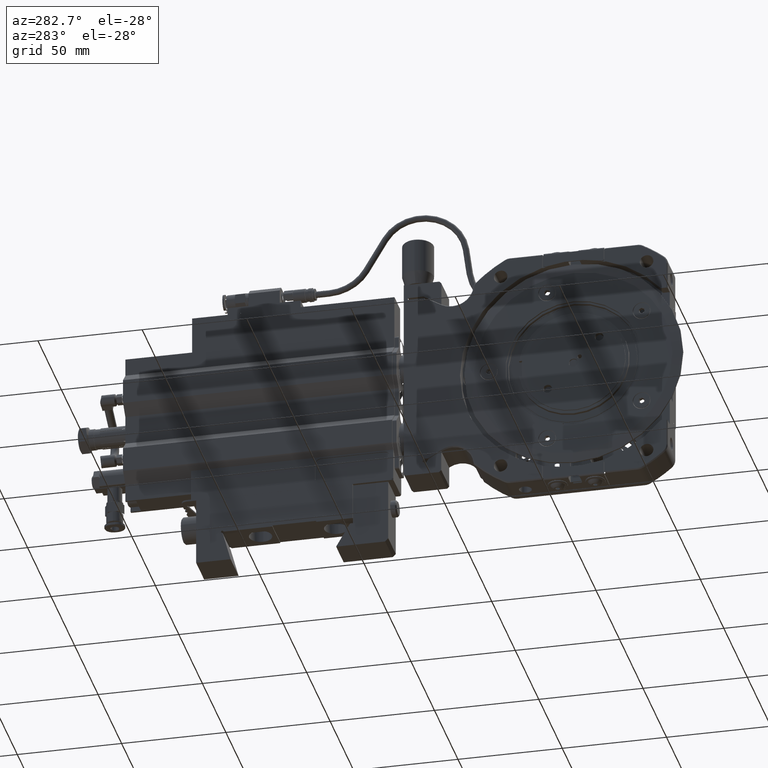
[diagram: clean part render]
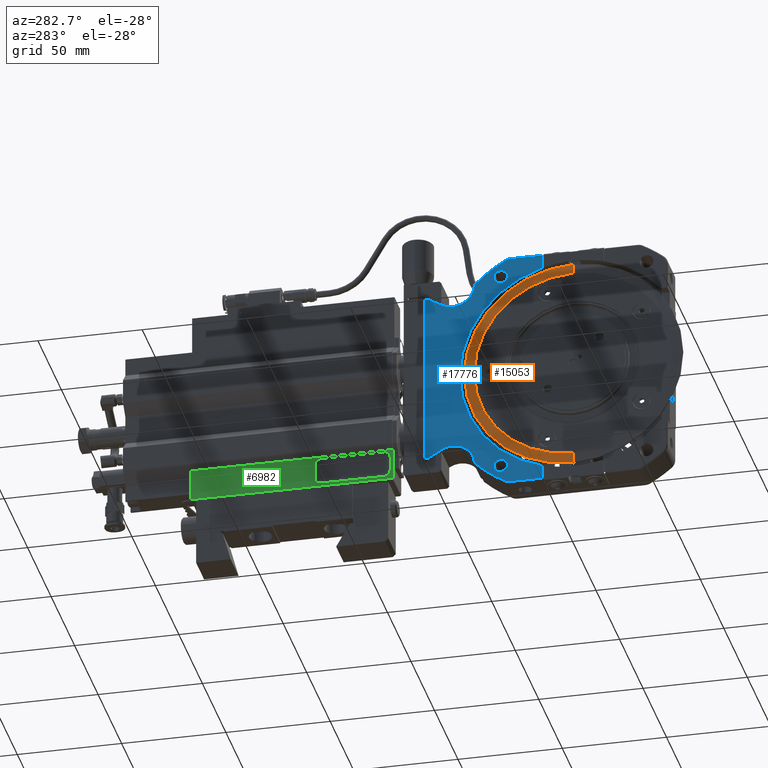
[diagram: same view with three faces highlighted in distinct colors, each labeled with its STEP entity id]
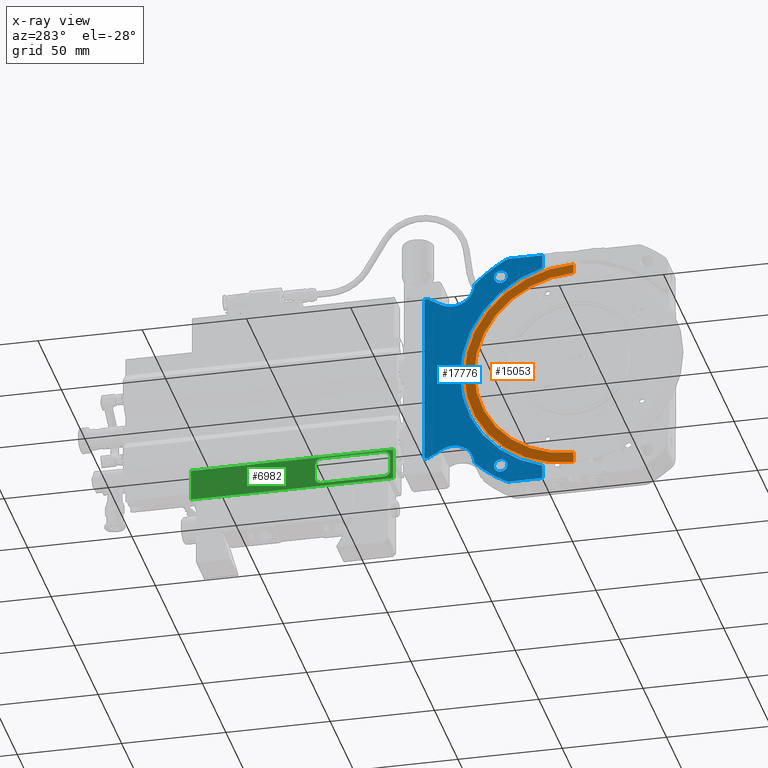
[diagram: x-ray of the same camera — body ghosted, the three highlighted faces saturated]
A machine part, auxiliary view with three faces highlighted in distinct colors.
The next image is the same camera in x-ray (body ghosted, the three faces saturated) — at least one of them is partly hidden behind the body in this view.
Their STEP definitions:

[orange] entity #15053 — the highlighted conical surface has half-angle 83 deg.
#98 = FACE_OUTER_BOUND ( 'NONE', #45208, .T. ) ;
#1043 = DIRECTION ( 'NONE',  ( 0.1218693434051477120, 0.000000000000000000, -0.9925461516413219831 ) ) ;
#2029 = AXIS2_PLACEMENT_3D ( 'NONE', #39850, #40135, #31887 ) ;
#2634 = CARTESIAN_POINT ( 'NONE',  ( -0.3622047244094396268, -0.09684252173074514580, -1.869120026493730435 ) ) ;
#2735 = VECTOR ( 'NONE', #1043, 39.37007874015748143 ) ;
#2823 = CARTESIAN_POINT ( 'NONE',  ( -0.3385815718487646953, -0.09684252173074514580, 0.001942965632253575723 ) ) ;
#3114 = EDGE_CURVE ( 'NONE', #13638, #44360, #16755, .T. ) ;
#4014 = AXIS2_PLACEMENT_3D ( 'NONE', #2823, #37916, #37353 ) ;
#6564 = EDGE_CURVE ( 'NONE', #28144, #13638, #13737, .T. ) ;
#7594 = CARTESIAN_POINT ( 'NONE',  ( -0.3385815718487646953, -0.09684252173074489600, 2.065401095933268927 ) ) ;
#7981 = EDGE_CURVE ( 'NONE', #24127, #44360, #39567, .T. ) ;
#13638 = VERTEX_POINT ( 'NONE', #7594 ) ;
#13737 = LINE ( 'NONE', #22213, #39708 ) ;
#15053 = ADVANCED_FACE ( 'NONE', ( #98 ), #17097, .T. ) ;
#16755 = CIRCLE ( 'NONE', #4014, 2.063458130301015103 ) ;
#17097 = CONICAL_SURFACE ( 'NONE', #26203, 2.063458130301015103, 1.448623279155293320 ) ;
#19466 = CARTESIAN_POINT ( 'NONE',  ( -0.3385815718487646953, -0.09684252173074514580, -2.061515164668761280 ) ) ;
#20842 = EDGE_CURVE ( 'NONE', #28144, #24127, #26637, .T. ) ;
#22213 = CARTESIAN_POINT ( 'NONE',  ( -0.3385815718487646953, -0.09684252173074489600, 2.065401095933268927 ) ) ;
#22935 = CARTESIAN_POINT ( 'NONE',  ( -0.3622047244094396268, -0.09684252173074490988, 1.873005957758237860 ) ) ;
#24127 = VERTEX_POINT ( 'NONE', #2634 ) ;
#25792 = CARTESIAN_POINT ( 'NONE',  ( -0.3385815718487646953, -0.09684252173074514580, 0.001942965632253575723 ) ) ;
#26203 = AXIS2_PLACEMENT_3D ( 'NONE', #25792, #53140, #27737 ) ;
#26637 = CIRCLE ( 'NONE', #2029, 1.871062992125984259 ) ;
#27737 = DIRECTION ( 'NONE',  ( 0.000000000000000000, 0.000000000000000000, -1.000000000000000000 ) ) ;
#28144 = VERTEX_POINT ( 'NONE', #22935 ) ;
#31887 = DIRECTION ( 'NONE',  ( 0.000000000000000000, 0.000000000000000000, 1.000000000000000000 ) ) ;
#33358 = ORIENTED_EDGE ( 'NONE', *, *, #20842, .F. ) ;
#35334 = CARTESIAN_POINT ( 'NONE',  ( -0.3385815718487646953, -0.09684252173074514580, -2.061515164668761280 ) ) ;
#37353 = DIRECTION ( 'NONE',  ( 0.000000000000000000, 0.000000000000000000, 1.000000000000000000 ) ) ;
#37916 = DIRECTION ( 'NONE',  ( -1.000000000000000000, -0.000000000000000000, -0.000000000000000000 ) ) ;
#39567 = LINE ( 'NONE', #35334, #2735 ) ;
#39708 = VECTOR ( 'NONE', #47579, 39.37007874015748143 ) ;
#39850 = CARTESIAN_POINT ( 'NONE',  ( -0.3622047244094396268, -0.09684252173074514580, 0.001942965632253575723 ) ) ;
#40135 = DIRECTION ( 'NONE',  ( -1.000000000000000000, -0.000000000000000000, -0.000000000000000000 ) ) ;
#41743 = ORIENTED_EDGE ( 'NONE', *, *, #3114, .T. ) ;
#44360 = VERTEX_POINT ( 'NONE', #19466 ) ;
#45208 = EDGE_LOOP ( 'NONE', ( #33358, #53603, #41743, #45561 ) ) ;
#45561 = ORIENTED_EDGE ( 'NONE', *, *, #7981, .F. ) ;
#47579 = DIRECTION ( 'NONE',  ( 0.1218693434051477120, 1.215518467613568319E-16, 0.9925461516413219831 ) ) ;
#53140 = DIRECTION ( 'NONE',  ( 1.000000000000000000, 0.000000000000000000, 0.000000000000000000 ) ) ;
#53603 = ORIENTED_EDGE ( 'NONE', *, *, #6564, .T. ) ;

[blue] entity #17776 — the highlighted planar face has unit normal (1, 0, 0).
#1228 = ORIENTED_EDGE ( 'NONE', *, *, #25585, .F. ) ;
#1335 = EDGE_CURVE ( 'NONE', #36690, #5536, #41366, .T. ) ;
#2163 = DIRECTION ( 'NONE',  ( 1.812397661468307792E-16, 6.531104430076867352E-15, -1.000000000000000000 ) ) ;
#2460 = DIRECTION ( 'NONE',  ( -1.000000000000000000, -2.800164661610394113E-17, -1.700029006457271446E-16 ) ) ;
#2545 = ORIENTED_EDGE ( 'NONE', *, *, #17784, .T. ) ;
#2549 = VERTEX_POINT ( 'NONE', #41479 ) ;
#2954 = CARTESIAN_POINT ( 'NONE',  ( -0.3346456692913296616, 2.718118108190510362, -1.655537349328384922 ) ) ;
#3341 = DIRECTION ( 'NONE',  ( 1.838806884535415767E-16, -3.239319189567619910E-15, -1.000000000000000000 ) ) ;
#3919 = DIRECTION ( 'NONE',  ( 1.838806884535416260E-16, -3.239319189567620699E-15, -1.000000000000000000 ) ) ;
#4099 = EDGE_CURVE ( 'NONE', #11371, #53875, #28839, .T. ) ;
#4100 = DIRECTION ( 'NONE',  ( -2.918251206342215541E-17, 1.000000000000000000, -3.224031013947942620E-15 ) ) ;
#4130 = ORIENTED_EDGE ( 'NONE', *, *, #40990, .T. ) ;
#4324 = DIRECTION ( 'NONE',  ( 2.918251206342215541E-17, -1.000000000000000000, 3.224031013947941831E-15 ) ) ;
#4453 = VERTEX_POINT ( 'NONE', #16511 ) ;
#4643 = CARTESIAN_POINT ( 'NONE',  ( -0.3346456692913296616, 2.189898843474779255, -1.864231443936779975 ) ) ;
#4723 = CARTESIAN_POINT ( 'NONE',  ( -0.3346456692913298281, 2.396591756860608768, -1.506228816388093250 ) ) ;
#5536 = VERTEX_POINT ( 'NONE', #30524 ) ;
#5697 = EDGE_CURVE ( 'NONE', #5536, #36690, #19537, .T. ) ;
#6382 = EDGE_CURVE ( 'NONE', #14029, #8829, #9236, .T. ) ;
#7074 = PLANE ( 'NONE',  #39413 ) ;
#7076 = CIRCLE ( 'NONE', #38033, 0.05905511811023490820 ) ;
#7205 = DIRECTION ( 'NONE',  ( 0.000000000000000000, 0.000000000000000000, -1.000000000000000000 ) ) ;
#7783 = VERTEX_POINT ( 'NONE', #29931 ) ;
#8121 = DIRECTION ( 'NONE',  ( 1.000000000000000000, 2.800164661610394113E-17, 1.700029006457271446E-16 ) ) ;
#8155 = CARTESIAN_POINT ( 'NONE',  ( -0.3346456692913303277, 1.194373758246772610, 2.302100445947210083 ) ) ;
#8369 = CARTESIAN_POINT ( 'NONE',  ( -0.3346456692913295505, 2.718118108190507254, -2.320891680037045823 ) ) ;
#8772 = VECTOR ( 'NONE', #35450, 39.37007874015748143 ) ;
#8829 = VERTEX_POINT ( 'NONE', #18509 ) ;
#9142 = ORIENTED_EDGE ( 'NONE', *, *, #6382, .T. ) ;
#9236 = LINE ( 'NONE', #51971, #8772 ) ;
#9336 = CARTESIAN_POINT ( 'NONE',  ( -0.3346456692913303277, 1.280716533387371125, 1.969265800277918199 ) ) ;
#9389 = VERTEX_POINT ( 'NONE', #41065 ) ;
#9880 = DIRECTION ( 'NONE',  ( -1.000000000000000000, -2.800164661610394113E-17, -1.700029006457271446E-16 ) ) ;
#9900 = CARTESIAN_POINT ( 'NONE',  ( -0.3346456692913296616, 1.760327968272493715, -1.871257954447850258 ) ) ;
#10717 = AXIS2_PLACEMENT_3D ( 'NONE', #4643, #8121, #17215 ) ;
#10820 = CARTESIAN_POINT ( 'NONE',  ( -0.3346456692913303277, 1.280716533387370903, 1.841313044372406171 ) ) ;
#11371 = VERTEX_POINT ( 'NONE', #9900 ) ;
#11556 = AXIS2_PLACEMENT_3D ( 'NONE', #55193, #2460, #2163 ) ;
#11654 = FACE_BOUND ( 'NONE', #35116, .T. ) ;
#11818 = CARTESIAN_POINT ( 'NONE',  ( -0.3346456692913296616, 1.280716533387358691, -1.965379869013420322 ) ) ;
#12906 = AXIS2_PLACEMENT_3D ( 'NONE', #22958, #28367, #18398 ) ;
#13736 = DIRECTION ( 'NONE',  ( -1.000000000000000000, -2.800164661610394113E-17, -1.700029006457271446E-16 ) ) ;
#14029 = VERTEX_POINT ( 'NONE', #55521 ) ;
#14209 = CARTESIAN_POINT ( 'NONE',  ( -0.3346456692913303277, 2.189898843474791246, 1.868117375201272523 ) ) ;
#14239 = CARTESIAN_POINT ( 'NONE',  ( -0.3346456692913303277, 1.777643189342505092, 1.837570404620774367 ) ) ;
#14253 = DIRECTION ( 'NONE',  ( 1.812397661468306806E-16, -9.456832083589988340E-15, -1.000000000000000000 ) ) ;
#14633 = CARTESIAN_POINT ( 'NONE',  ( -0.3346456692913303277, 1.107650276755745899, 2.324777611301540148 ) ) ;
#14714 = DIRECTION ( 'NONE',  ( -2.918251206342215541E-17, 1.000000000000000000, -3.224031013947942620E-15 ) ) ;
#14740 = DIRECTION ( 'NONE',  ( 0.000000000000000000, 4.270088556250598741E-15, 1.000000000000000000 ) ) ;
#15252 = CIRCLE ( 'NONE', #10717, 0.4133858267716560841 ) ;
#15534 = CARTESIAN_POINT ( 'NONE',  ( -0.3346456692913296616, 2.189898843474779255, -1.864231443936779975 ) ) ;
#15896 = DIRECTION ( 'NONE',  ( -1.000000000000000000, -2.800164661610394113E-17, -1.700029006457271446E-16 ) ) ;
#15944 = AXIS2_PLACEMENT_3D ( 'NONE', #9336, #9880, #27251 ) ;
#16376 = AXIS2_PLACEMENT_3D ( 'NONE', #14209, #31060, #40127 ) ;
#16511 = CARTESIAN_POINT ( 'NONE',  ( -0.3346456692913296616, 1.280716533387358247, -2.093332624918932350 ) ) ;
#17127 = VERTEX_POINT ( 'NONE', #8155 ) ;
#17133 = DIRECTION ( 'NONE',  ( 0.000000000000000000, 0.000000000000000000, -1.000000000000000000 ) ) ;
#17215 = DIRECTION ( 'NONE',  ( 1.652117596168377649E-16, -3.304235192336755396E-15, -1.000000000000000000 ) ) ;
#17490 = ORIENTED_EDGE ( 'NONE', *, *, #38869, .T. ) ;
#17493 = LINE ( 'NONE', #51704, #26415 ) ;
#17647 = AXIS2_PLACEMENT_3D ( 'NONE', #20662, #37531, #14253 ) ;
#17776 = ADVANCED_FACE ( 'NONE', ( #44417, #22784, #11654 ), #7074, .F. ) ;
#17784 = EDGE_CURVE ( 'NONE', #7783, #21046, #46642, .T. ) ;
#17890 = CARTESIAN_POINT ( 'NONE',  ( -0.3346456692913296616, 2.655201721916761848, -1.655537349328384700 ) ) ;
#18129 = CIRCLE ( 'NONE', #16376, 0.4133858267716550294 ) ;
#18398 = DIRECTION ( 'NONE',  ( 0.000000000000000000, -3.083952846181016116E-15, -1.000000000000000000 ) ) ;
#18509 = CARTESIAN_POINT ( 'NONE',  ( -0.3346456692913303277, 2.655201721916771174, 1.659423280592874583 ) ) ;
#18812 = EDGE_CURVE ( 'NONE', #4453, #23097, #51360, .T. ) ;
#18883 = ORIENTED_EDGE ( 'NONE', *, *, #1335, .F. ) ;
#19537 = CIRCLE ( 'NONE', #15944, 0.1279527559055119168 ) ;
#20251 = VECTOR ( 'NONE', #37865, 39.37007874015748143 ) ;
#20662 = CARTESIAN_POINT ( 'NONE',  ( -0.3346456692913299391, -0.09684252173074514580, 0.001942965632253580493 ) ) ;
#21046 = VERTEX_POINT ( 'NONE', #14633 ) ;
#21571 = CIRCLE ( 'NONE', #28866, 0.05905511811023381880 ) ;
#22784 = FACE_BOUND ( 'NONE', #29017, .T. ) ;
#22958 = CARTESIAN_POINT ( 'NONE',  ( -0.3346456692913303277, 1.107650276755745455, 2.147612256970832689 ) ) ;
#23097 = VERTEX_POINT ( 'NONE', #46116 ) ;
#23222 = DIRECTION ( 'NONE',  ( 1.000000000000000000, 2.800164661610394113E-17, 1.700029006457271446E-16 ) ) ;
#23409 = VECTOR ( 'NONE', #45173, 39.37007874015748143 ) ;
#23507 = ORIENTED_EDGE ( 'NONE', *, *, #5697, .F. ) ;
#23535 = CARTESIAN_POINT ( 'NONE',  ( -0.3346456692913299391, -0.09684252173074514580, 0.001942965632253580493 ) ) ;
#24238 = ORIENTED_EDGE ( 'NONE', *, *, #35858, .T. ) ;
#24286 = CARTESIAN_POINT ( 'NONE',  ( -0.3346456692913296616, 1.718749524466453016, -1.829320620416208021 ) ) ;
#24363 = CARTESIAN_POINT ( 'NONE',  ( -0.3346456692913297171, 2.189898843474780588, -1.450845617165123835 ) ) ;
#24730 = CARTESIAN_POINT ( 'NONE',  ( -0.3346456692913303277, 1.280716533387371125, 1.969265800277918199 ) ) ;
#25389 = ORIENTED_EDGE ( 'NONE', *, *, #29177, .T. ) ;
#25564 = CARTESIAN_POINT ( 'NONE',  ( -0.3346456692913298281, 2.396591756860608768, -1.506228816388093472 ) ) ;
#25585 = EDGE_CURVE ( 'NONE', #38693, #29276, #32401, .T. ) ;
#26146 = CARTESIAN_POINT ( 'NONE',  ( -0.3346456692913303277, 1.760327968272507704, 1.875143885712345693 ) ) ;
#26415 = VECTOR ( 'NONE', #4100, 39.37007874015748143 ) ;
#26421 = ORIENTED_EDGE ( 'NONE', *, *, #51944, .T. ) ;
#26519 = CARTESIAN_POINT ( 'NONE',  ( -0.3346456692913303277, 1.718749524466465894, 1.833206551680703011 ) ) ;
#26719 = CARTESIAN_POINT ( 'NONE',  ( -0.3346456692913303277, 0.4937086593716247807, 2.344462650671621962 ) ) ;
#26775 = AXIS2_PLACEMENT_3D ( 'NONE', #44647, #27558, #14740 ) ;
#27251 = DIRECTION ( 'NONE',  ( 0.000000000000000000, 4.270088556250598741E-15, 1.000000000000000000 ) ) ;
#27302 = AXIS2_PLACEMENT_3D ( 'NONE', #15534, #23222, #32935 ) ;
#27558 = DIRECTION ( 'NONE',  ( -1.000000000000000000, -2.800164661610394113E-17, -1.700029006457271446E-16 ) ) ;
#28016 = ORIENTED_EDGE ( 'NONE', *, *, #32978, .T. ) ;
#28367 = DIRECTION ( 'NONE',  ( -1.000000000000000000, -2.800164661610394113E-17, -1.700029006457271446E-16 ) ) ;
#28661 = DIRECTION ( 'NONE',  ( 1.000000000000000000, 2.800164661610394113E-17, 1.700029006457271446E-16 ) ) ;
#28839 = CIRCLE ( 'NONE', #11556, 2.637795275590548272 ) ;
#28866 = AXIS2_PLACEMENT_3D ( 'NONE', #24286, #51081, #7205 ) ;
#29017 = EDGE_LOOP ( 'NONE', ( #30931, #38564 ) ) ;
#29092 = EDGE_CURVE ( 'NONE', #8829, #46259, #48894, .T. ) ;
#29177 = EDGE_CURVE ( 'NONE', #38693, #34788, #50824, .T. ) ;
#29251 = CARTESIAN_POINT ( 'NONE',  ( -0.3346456692913299391, 0.4937086593716096261, -2.320891680037037386 ) ) ;
#29276 = VERTEX_POINT ( 'NONE', #29251 ) ;
#29592 = AXIS2_PLACEMENT_3D ( 'NONE', #24730, #15896, #50954 ) ;
#29613 = DIRECTION ( 'NONE',  ( 1.000000000000000000, 2.800164661610399044E-17, 1.838806884535414781E-16 ) ) ;
#29807 = EDGE_CURVE ( 'NONE', #46259, #38063, #36113, .T. ) ;
#29931 = CARTESIAN_POINT ( 'NONE',  ( -0.3346456692913303277, 0.4937086593716246141, 2.324777611301543256 ) ) ;
#30055 = DIRECTION ( 'NONE',  ( -1.000000000000000000, -2.800164661610394113E-17, -1.700029006457271446E-16 ) ) ;
#30299 = CARTESIAN_POINT ( 'NONE',  ( -0.3346456692913303277, 2.718118108190520132, 1.659423280592874361 ) ) ;
#30524 = CARTESIAN_POINT ( 'NONE',  ( -0.3346456692913303277, 1.280716533387371792, 2.097218556183430227 ) ) ;
#30744 = LINE ( 'NONE', #26719, #54730 ) ;
#30789 = EDGE_CURVE ( 'NONE', #7783, #34788, #30744, .T. ) ;
#30931 = ORIENTED_EDGE ( 'NONE', *, *, #31054, .F. ) ;
#31054 = EDGE_CURVE ( 'NONE', #23097, #4453, #46553, .T. ) ;
#31060 = DIRECTION ( 'NONE',  ( 1.000000000000000000, 2.800164661610394113E-17, 1.700029006457271446E-16 ) ) ;
#32401 = LINE ( 'NONE', #32686, #23409 ) ;
#32686 = CARTESIAN_POINT ( 'NONE',  ( -0.3346456692913303277, 0.4937086593716247807, 2.344462650671621962 ) ) ;
#32935 = DIRECTION ( 'NONE',  ( 1.652117596168377649E-16, -3.304235192336755396E-15, -1.000000000000000000 ) ) ;
#32978 = EDGE_CURVE ( 'NONE', #17127, #35314, #42242, .T. ) ;
#33572 = AXIS2_PLACEMENT_3D ( 'NONE', #23535, #28661, #41458 ) ;
#34310 = ORIENTED_EDGE ( 'NONE', *, *, #54345, .T. ) ;
#34788 = VERTEX_POINT ( 'NONE', #49591 ) ;
#35116 = EDGE_LOOP ( 'NONE', ( #23507, #18883 ) ) ;
#35314 = VERTEX_POINT ( 'NONE', #26146 ) ;
#35450 = DIRECTION ( 'NONE',  ( -1.172131410199404631E-16, 0.8660254037844393737, 0.4999999999999986677 ) ) ;
#35858 = EDGE_CURVE ( 'NONE', #35314, #48342, #7076, .T. ) ;
#35951 = VECTOR ( 'NONE', #4324, 39.37007874015748143 ) ;
#36113 = LINE ( 'NONE', #56146, #41835 ) ;
#36690 = VERTEX_POINT ( 'NONE', #10820 ) ;
#37474 = VECTOR ( 'NONE', #55507, 39.37007874015748854 ) ;
#37531 = DIRECTION ( 'NONE',  ( -1.000000000000000000, -2.800164661610394113E-17, -1.700029006457271446E-16 ) ) ;
#37702 = VERTEX_POINT ( 'NONE', #17890 ) ;
#37865 = DIRECTION ( 'NONE',  ( -2.918251206342215541E-17, 1.000000000000000000, -3.224031013947941831E-15 ) ) ;
#38033 = AXIS2_PLACEMENT_3D ( 'NONE', #26519, #13736, #17133 ) ;
#38040 = EDGE_CURVE ( 'NONE', #52388, #9389, #48212, .T. ) ;
#38063 = VERTEX_POINT ( 'NONE', #2954 ) ;
#38136 = LINE ( 'NONE', #25564, #37474 ) ;
#38180 = EDGE_CURVE ( 'NONE', #37702, #38063, #17493, .T. ) ;
#38564 = ORIENTED_EDGE ( 'NONE', *, *, #18812, .F. ) ;
#38693 = VERTEX_POINT ( 'NONE', #43217 ) ;
#38869 = EDGE_CURVE ( 'NONE', #21046, #17127, #43774, .T. ) ;
#39034 = ORIENTED_EDGE ( 'NONE', *, *, #38180, .F. ) ;
#39251 = EDGE_LOOP ( 'NONE', ( #46484, #1228, #25389, #42880, #2545, #17490, #28016, #24238, #34310, #9142, #49131, #50508, #39034, #26421, #46402, #46249, #54105, #41669, #4130 ) ) ;
#39413 = AXIS2_PLACEMENT_3D ( 'NONE', #46367, #29613, #3341 ) ;
#40127 = DIRECTION ( 'NONE',  ( 1.652117596168381839E-16, -3.304235192336763679E-15, -1.000000000000000000 ) ) ;
#40990 = EDGE_CURVE ( 'NONE', #53875, #2549, #41427, .T. ) ;
#41065 = CARTESIAN_POINT ( 'NONE',  ( -0.3346456692913296616, 1.777643189342491103, -1.833684473356279376 ) ) ;
#41366 = CIRCLE ( 'NONE', #29592, 0.1279527559055119168 ) ;
#41427 = CIRCLE ( 'NONE', #42330, 0.1771653543307063761 ) ;
#41458 = DIRECTION ( 'NONE',  ( 1.909787313001989722E-16, -3.238680984965874096E-15, -1.000000000000000000 ) ) ;
#41479 = CARTESIAN_POINT ( 'NONE',  ( -0.3346456692913295505, 1.107650276755732799, -2.320891680037038274 ) ) ;
#41669 = ORIENTED_EDGE ( 'NONE', *, *, #4099, .T. ) ;
#41697 = VECTOR ( 'NONE', #14714, 39.37007874015748143 ) ;
#41835 = VECTOR ( 'NONE', #44630, 39.37007874015748143 ) ;
#42207 = DIRECTION ( 'NONE',  ( -1.000000000000000000, -2.800164661610394113E-17, -1.700029006457271446E-16 ) ) ;
#42242 = CIRCLE ( 'NONE', #17647, 2.637795275590549604 ) ;
#42330 = AXIS2_PLACEMENT_3D ( 'NONE', #54758, #42207, #51325 ) ;
#42880 = ORIENTED_EDGE ( 'NONE', *, *, #30789, .F. ) ;
#42887 = EDGE_CURVE ( 'NONE', #55542, #52388, #15252, .T. ) ;
#43217 = CARTESIAN_POINT ( 'NONE',  ( -0.3346456692913295505, 0.4937086593716105143, -2.060857560422562518 ) ) ;
#43774 = CIRCLE ( 'NONE', #12906, 0.1771653543307071810 ) ;
#44417 = FACE_OUTER_BOUND ( 'NONE', #39251, .T. ) ;
#44630 = DIRECTION ( 'NONE',  ( 1.838806884535416260E-16, -3.239319189567620699E-15, -1.000000000000000000 ) ) ;
#44647 = CARTESIAN_POINT ( 'NONE',  ( -0.3346456692913296616, 1.280716533387358691, -1.965379869013420322 ) ) ;
#44740 = AXIS2_PLACEMENT_3D ( 'NONE', #11818, #30055, #46523 ) ;
#45173 = DIRECTION ( 'NONE',  ( 1.838806884535416260E-16, -3.239319189567620699E-15, -1.000000000000000000 ) ) ;
#45870 = CARTESIAN_POINT ( 'NONE',  ( -0.3346456692913295505, 1.194373758246758843, -2.298214514682708209 ) ) ;
#46116 = CARTESIAN_POINT ( 'NONE',  ( -0.3346456692913296616, 1.280716533387359135, -1.837427113107908294 ) ) ;
#46242 = EDGE_CURVE ( 'NONE', #2549, #29276, #51652, .T. ) ;
#46249 = ORIENTED_EDGE ( 'NONE', *, *, #38040, .T. ) ;
#46259 = VERTEX_POINT ( 'NONE', #30299 ) ;
#46367 = CARTESIAN_POINT ( 'NONE',  ( -0.3346456692913304942, 2.718118108190522353, 2.344462650671614856 ) ) ;
#46402 = ORIENTED_EDGE ( 'NONE', *, *, #42887, .T. ) ;
#46484 = ORIENTED_EDGE ( 'NONE', *, *, #46242, .T. ) ;
#46523 = DIRECTION ( 'NONE',  ( 0.000000000000000000, 4.270088556250598741E-15, 1.000000000000000000 ) ) ;
#46553 = CIRCLE ( 'NONE', #44740, 0.1279527559055119168 ) ;
#46642 = LINE ( 'NONE', #54670, #20251 ) ;
#48212 = CIRCLE ( 'NONE', #27302, 0.4133858267716560841 ) ;
#48342 = VERTEX_POINT ( 'NONE', #14239 ) ;
#48894 = LINE ( 'NONE', #49734, #41697 ) ;
#49131 = ORIENTED_EDGE ( 'NONE', *, *, #29092, .T. ) ;
#49591 = CARTESIAN_POINT ( 'NONE',  ( -0.3346456692913303277, 0.4937086593716238925, 2.064743491687066168 ) ) ;
#49734 = CARTESIAN_POINT ( 'NONE',  ( -0.3346456692913303277, 2.718118108190521465, 1.659423280592874361 ) ) ;
#50508 = ORIENTED_EDGE ( 'NONE', *, *, #29807, .T. ) ;
#50824 = CIRCLE ( 'NONE', #33572, 2.145669291338582418 ) ;
#50954 = DIRECTION ( 'NONE',  ( 0.000000000000000000, 4.270088556250598741E-15, 1.000000000000000000 ) ) ;
#51081 = DIRECTION ( 'NONE',  ( -1.000000000000000000, -2.800164661610394113E-17, -1.700029006457271446E-16 ) ) ;
#51325 = DIRECTION ( 'NONE',  ( 0.000000000000000000, -7.709882115452575788E-16, -1.000000000000000000 ) ) ;
#51360 = CIRCLE ( 'NONE', #26775, 0.1279527559055119168 ) ;
#51652 = LINE ( 'NONE', #8369, #35951 ) ;
#51704 = CARTESIAN_POINT ( 'NONE',  ( -0.3346456692913296616, 2.718118108190510362, -1.655537349328384922 ) ) ;
#51944 = EDGE_CURVE ( 'NONE', #37702, #55542, #38136, .T. ) ;
#51971 = CARTESIAN_POINT ( 'NONE',  ( -0.3346456692913303277, 2.999019760162423331, 1.857926717526250160 ) ) ;
#52388 = VERTEX_POINT ( 'NONE', #24363 ) ;
#52722 = EDGE_CURVE ( 'NONE', #9389, #11371, #21571, .T. ) ;
#53875 = VERTEX_POINT ( 'NONE', #45870 ) ;
#54105 = ORIENTED_EDGE ( 'NONE', *, *, #52722, .T. ) ;
#54345 = EDGE_CURVE ( 'NONE', #48342, #14029, #18129, .T. ) ;
#54670 = CARTESIAN_POINT ( 'NONE',  ( -0.3346456692913304942, 2.718118108190522353, 2.324777611301536151 ) ) ;
#54730 = VECTOR ( 'NONE', #3919, 39.37007874015748143 ) ;
#54758 = CARTESIAN_POINT ( 'NONE',  ( -0.3346456692913295505, 1.107650276755733465, -2.143726325706332148 ) ) ;
#55193 = CARTESIAN_POINT ( 'NONE',  ( -0.3346456692913299391, -0.09684252173074514580, 0.001942965632253580493 ) ) ;
#55507 = DIRECTION ( 'NONE',  ( -6.666754743360166826E-17, -0.8660254037844361541, 0.5000000000000042188 ) ) ;
#55521 = CARTESIAN_POINT ( 'NONE',  ( -0.3346456692913303277, 2.396591756860618094, 1.510114747652585576 ) ) ;
#55542 = VERTEX_POINT ( 'NONE', #4723 ) ;
#56146 = CARTESIAN_POINT ( 'NONE',  ( -0.3346456692913295505, 2.718118108190507254, -2.340576719407124529 ) ) ;

[green] entity #6982 — the highlighted planar face has unit normal (1, -0, 0).
#538 = LINE ( 'NONE', #44138, #33334 ) ;
#1084 = CARTESIAN_POINT ( 'NONE',  ( -0.3346456692913382103, 3.308669289292881288, -1.994120026493726883 ) ) ;
#1467 = CARTESIAN_POINT ( 'NONE',  ( -0.3346456692913382103, 3.367724407403117848, -1.816954672163017204 ) ) ;
#2267 = ORIENTED_EDGE ( 'NONE', *, *, #53902, .F. ) ;
#2618 = CIRCLE ( 'NONE', #3534, 0.1181102362204725503 ) ;
#3105 = DIRECTION ( 'NONE',  ( -1.802115992239523963E-16, -5.551115123125782702E-17, 1.000000000000000000 ) ) ;
#3534 = AXIS2_PLACEMENT_3D ( 'NONE', #51608, #12303, #29705 ) ;
#3676 = VECTOR ( 'NONE', #24025, 39.37007874015748143 ) ;
#3931 = CARTESIAN_POINT ( 'NONE',  ( -0.3346456692913388209, 3.308669289292881288, -1.395694829643333135 ) ) ;
#5421 = EDGE_CURVE ( 'NONE', #27777, #9615, #21664, .T. ) ;
#5788 = FACE_OUTER_BOUND ( 'NONE', #9945, .T. ) ;
#6521 = EDGE_LOOP ( 'NONE', ( #9910, #55395, #33805, #39112, #28213, #32658, #2267, #10415 ) ) ;
#6982 = ADVANCED_FACE ( 'NONE', ( #10381, #5788 ), #24334, .F. ) ;
#7703 = CARTESIAN_POINT ( 'NONE',  ( -0.3346456692913382103, 3.367724407403117848, -1.816954672163017204 ) ) ;
#7929 = EDGE_CURVE ( 'NONE', #11201, #10834, #23008, .T. ) ;
#8183 = EDGE_CURVE ( 'NONE', #10834, #13198, #44651, .T. ) ;
#8348 = CARTESIAN_POINT ( 'NONE',  ( -0.3346456692913382658, 3.485834643623591411, -1.423253884761443322 ) ) ;
#8873 = DIRECTION ( 'NONE',  ( -2.738967610578714190E-17, 1.000000000000000000, -2.775557561562891351E-17 ) ) ;
#9026 = CARTESIAN_POINT ( 'NONE',  ( -0.3346456692913382658, 4.666937005828314611, -1.816954672163018092 ) ) ;
#9615 = VERTEX_POINT ( 'NONE', #1084 ) ;
#9910 = ORIENTED_EDGE ( 'NONE', *, *, #16258, .F. ) ;
#9945 = EDGE_LOOP ( 'NONE', ( #39284, #36756, #45627, #11270 ) ) ;
#10282 = EDGE_CURVE ( 'NONE', #24143, #22127, #2618, .T. ) ;
#10350 = VECTOR ( 'NONE', #55918, 39.37007874015748143 ) ;
#10381 = FACE_BOUND ( 'NONE', #6521, .T. ) ;
#10415 = ORIENTED_EDGE ( 'NONE', *, *, #47519, .F. ) ;
#10834 = VERTEX_POINT ( 'NONE', #22663 ) ;
#11201 = VERTEX_POINT ( 'NONE', #12809 ) ;
#11229 = CARTESIAN_POINT ( 'NONE',  ( -0.3346456692913382658, 3.308669289292881288, -1.395694829643333135 ) ) ;
#11270 = ORIENTED_EDGE ( 'NONE', *, *, #44315, .T. ) ;
#11332 = VERTEX_POINT ( 'NONE', #31569 ) ;
#11996 = LINE ( 'NONE', #7703, #20987 ) ;
#12303 = DIRECTION ( 'NONE',  ( -1.000000000000000000, 5.477935221156371429E-17, -1.201972231527911928E-17 ) ) ;
#12423 = AXIS2_PLACEMENT_3D ( 'NONE', #19031, #53824, #36196 ) ;
#12623 = LINE ( 'NONE', #8348, #30933 ) ;
#12687 = CARTESIAN_POINT ( 'NONE',  ( -0.3346456692913382658, 3.367724407403117848, -1.541364120981916885 ) ) ;
#12809 = CARTESIAN_POINT ( 'NONE',  ( -0.3346456692913383213, 4.785047242048786842, -1.541364120981916885 ) ) ;
#13092 = EDGE_CURVE ( 'NONE', #37016, #21342, #31573, .T. ) ;
#13182 = VECTOR ( 'NONE', #42772, 39.37007874015748143 ) ;
#13198 = VERTEX_POINT ( 'NONE', #15415 ) ;
#14482 = DIRECTION ( 'NONE',  ( 1.802115992239523963E-16, 5.551115123125782702E-17, -1.000000000000000000 ) ) ;
#15415 = CARTESIAN_POINT ( 'NONE',  ( -0.3346456692913382103, 4.666937005828313723, -1.935064908383490545 ) ) ;
#16258 = EDGE_CURVE ( 'NONE', #22127, #19501, #11996, .T. ) ;
#16992 = DIRECTION ( 'NONE',  ( -1.000000000000000000, 5.477935221156371429E-17, -1.201972231527911928E-17 ) ) ;
#17016 = CARTESIAN_POINT ( 'NONE',  ( -0.3346456692913382658, 3.485834643623591411, -1.423253884761443322 ) ) ;
#19031 = CARTESIAN_POINT ( 'NONE',  ( -0.3346456692913382658, 3.485834643623590079, -1.541364120981915997 ) ) ;
#19501 = VERTEX_POINT ( 'NONE', #12687 ) ;
#20987 = VECTOR ( 'NONE', #3105, 39.37007874015748143 ) ;
#21131 = LINE ( 'NONE', #38556, #10350 ) ;
#21194 = EDGE_CURVE ( 'NONE', #13198, #24143, #21131, .T. ) ;
#21342 = VERTEX_POINT ( 'NONE', #25673 ) ;
#21546 = CARTESIAN_POINT ( 'NONE',  ( -0.3346456692913384323, 7.127566927088157200, -1.395694829643333135 ) ) ;
#21664 = LINE ( 'NONE', #25387, #13182 ) ;
#22127 = VERTEX_POINT ( 'NONE', #1467 ) ;
#22663 = CARTESIAN_POINT ( 'NONE',  ( -0.3346456692913382658, 4.785047242048786842, -1.816954672163017204 ) ) ;
#23008 = LINE ( 'NONE', #52972, #28212 ) ;
#24025 = DIRECTION ( 'NONE',  ( -2.738967610578714190E-17, 1.000000000000000000, -2.775557561562891351E-17 ) ) ;
#24143 = VERTEX_POINT ( 'NONE', #38303 ) ;
#24334 = PLANE ( 'NONE',  #46125 ) ;
#25387 = CARTESIAN_POINT ( 'NONE',  ( -0.3346456692913382103, 3.308669289292881288, -1.994120026493726883 ) ) ;
#25673 = CARTESIAN_POINT ( 'NONE',  ( -0.3346456692913382658, 7.127566927088157200, -1.994120026493726883 ) ) ;
#25735 = DIRECTION ( 'NONE',  ( -1.000000000000000000, 5.477935221156371429E-17, -1.201972231527911928E-17 ) ) ;
#26537 = DIRECTION ( 'NONE',  ( -2.738967610578713573E-17, 1.000000000000000000, -2.775557561562891351E-17 ) ) ;
#26712 = DIRECTION ( 'NONE',  ( 1.802115992239523963E-16, 5.551115123125782702E-17, -1.000000000000000000 ) ) ;
#26987 = CARTESIAN_POINT ( 'NONE',  ( -0.3346456692913382658, 7.127566927088157200, -1.994120026493726883 ) ) ;
#27777 = VERTEX_POINT ( 'NONE', #3931 ) ;
#28212 = VECTOR ( 'NONE', #14482, 39.37007874015748143 ) ;
#28213 = ORIENTED_EDGE ( 'NONE', *, *, #7929, .F. ) ;
#29705 = DIRECTION ( 'NONE',  ( 0.000000000000000000, 0.000000000000000000, -1.000000000000000000 ) ) ;
#30933 = VECTOR ( 'NONE', #26537, 39.37007874015748143 ) ;
#31569 = CARTESIAN_POINT ( 'NONE',  ( -0.3346456692913383213, 4.666937005828313723, -1.423253884761443322 ) ) ;
#31573 = LINE ( 'NONE', #26987, #48960 ) ;
#32658 = ORIENTED_EDGE ( 'NONE', *, *, #49845, .F. ) ;
#33334 = VECTOR ( 'NONE', #8873, 39.37007874015748143 ) ;
#33805 = ORIENTED_EDGE ( 'NONE', *, *, #21194, .F. ) ;
#36196 = DIRECTION ( 'NONE',  ( 0.000000000000000000, 0.000000000000000000, 1.000000000000000000 ) ) ;
#36756 = ORIENTED_EDGE ( 'NONE', *, *, #42256, .F. ) ;
#36897 = DIRECTION ( 'NONE',  ( 1.000000000000000000, -5.477935221156372661E-17, 1.802115992239523963E-16 ) ) ;
#36985 = CIRCLE ( 'NONE', #12423, 0.1181102362204725503 ) ;
#37016 = VERTEX_POINT ( 'NONE', #21546 ) ;
#38303 = CARTESIAN_POINT ( 'NONE',  ( -0.3346456692913382103, 3.485834643623591411, -1.935064908383490545 ) ) ;
#38556 = CARTESIAN_POINT ( 'NONE',  ( -0.3346456692913382103, 3.485834643623591411, -1.935064908383490545 ) ) ;
#39112 = ORIENTED_EDGE ( 'NONE', *, *, #8183, .F. ) ;
#39284 = ORIENTED_EDGE ( 'NONE', *, *, #13092, .T. ) ;
#40996 = AXIS2_PLACEMENT_3D ( 'NONE', #9026, #16992, #43179 ) ;
#42256 = EDGE_CURVE ( 'NONE', #9615, #21342, #538, .T. ) ;
#42772 = DIRECTION ( 'NONE',  ( 1.802115992239523963E-16, 5.551115123125782702E-17, -1.000000000000000000 ) ) ;
#43179 = DIRECTION ( 'NONE',  ( 0.000000000000000000, 0.000000000000000000, -1.000000000000000000 ) ) ;
#44138 = CARTESIAN_POINT ( 'NONE',  ( -0.3346456692913382103, 3.308669289292881288, -1.994120026493726883 ) ) ;
#44315 = EDGE_CURVE ( 'NONE', #27777, #37016, #45381, .T. ) ;
#44651 = CIRCLE ( 'NONE', #40996, 0.1181102362204725503 ) ;
#45111 = DIRECTION ( 'NONE',  ( 1.802115992239523963E-16, 5.551115123125782702E-17, -1.000000000000000000 ) ) ;
#45381 = LINE ( 'NONE', #11229, #3676 ) ;
#45627 = ORIENTED_EDGE ( 'NONE', *, *, #5421, .F. ) ;
#46125 = AXIS2_PLACEMENT_3D ( 'NONE', #54549, #36897, #45111 ) ;
#47103 = DIRECTION ( 'NONE',  ( 0.000000000000000000, 0.000000000000000000, -1.000000000000000000 ) ) ;
#47519 = EDGE_CURVE ( 'NONE', #19501, #55499, #36985, .T. ) ;
#48160 = AXIS2_PLACEMENT_3D ( 'NONE', #55675, #25735, #47103 ) ;
#48960 = VECTOR ( 'NONE', #26712, 39.37007874015748143 ) ;
#49845 = EDGE_CURVE ( 'NONE', #11332, #11201, #50874, .T. ) ;
#50874 = CIRCLE ( 'NONE', #48160, 0.1181102362204725503 ) ;
#51608 = CARTESIAN_POINT ( 'NONE',  ( -0.3346456692913382103, 3.485834643623590079, -1.816954672163018092 ) ) ;
#52972 = CARTESIAN_POINT ( 'NONE',  ( -0.3346456692913382658, 4.785047242048786842, -1.816954672163017204 ) ) ;
#53824 = DIRECTION ( 'NONE',  ( -1.000000000000000000, 5.477935221156371429E-17, -1.201972231527911928E-17 ) ) ;
#53902 = EDGE_CURVE ( 'NONE', #55499, #11332, #12623, .T. ) ;
#54549 = CARTESIAN_POINT ( 'NONE',  ( -0.3346456692913382103, 3.308669289292881288, -1.994120026493726883 ) ) ;
#55395 = ORIENTED_EDGE ( 'NONE', *, *, #10282, .F. ) ;
#55499 = VERTEX_POINT ( 'NONE', #17016 ) ;
#55675 = CARTESIAN_POINT ( 'NONE',  ( -0.3346456692913383213, 4.666937005828314611, -1.541364120981915997 ) ) ;
#55918 = DIRECTION ( 'NONE',  ( 2.738967610578713573E-17, -1.000000000000000000, 2.775557561562891351E-17 ) ) ;